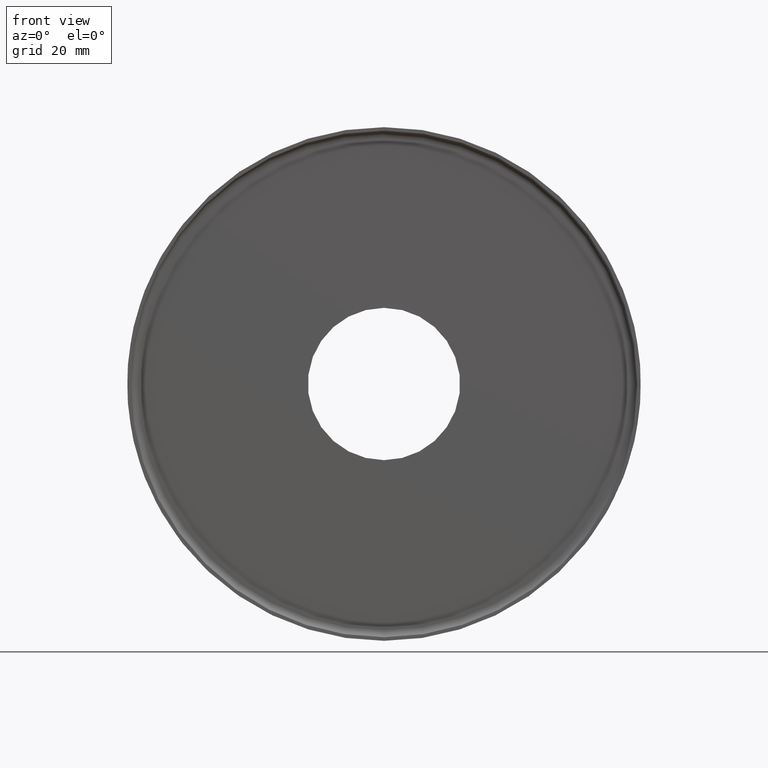
[diagram: clean part render]
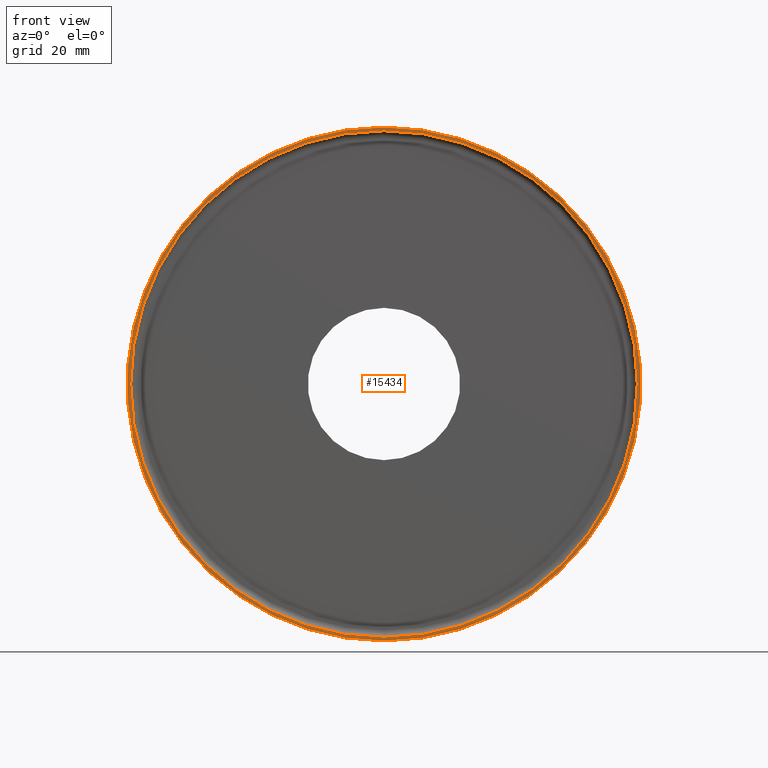
[diagram: same view with one face highlighted and labeled with its STEP entity id]
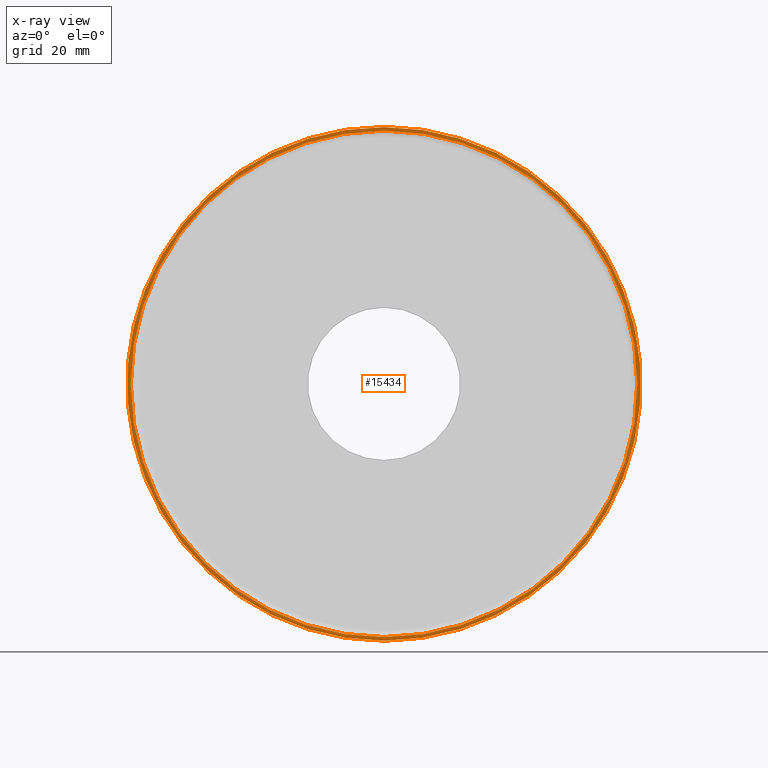
[diagram: x-ray of the same camera — body ghosted, the highlighted face saturated]
A machine part, front view. The second image highlights one B-rep face of the part: STEP entity #15434.
The next image is the same camera in x-ray: the body ghosted, the highlighted face saturated — about 0% of this face is hidden behind the body in this view.
In plain terms, the highlighted planar face has unit normal (0, -1, -0).
Its self-contained STEP definition (entity closure, byte-faithful):
#426 = CARTESIAN_POINT ( 'NONE',  ( 0.000000000000000000, 0.000000000000000000, 0.000000000000000000 ) ) ;
#807 = VERTEX_POINT ( 'NONE', #846 ) ;
#846 = CARTESIAN_POINT ( 'NONE',  ( 0.000000000000000000, -1.224646799147353207E-16, -71.50000000000000000 ) ) ;
#866 = CARTESIAN_POINT ( 'NONE',  ( 0.000000000000000000, 0.000000000000000000, 0.000000000000000000 ) ) ;
#949 = DIRECTION ( 'NONE',  ( -0.000000000000000000, -1.000000000000000000, -0.000000000000000000 ) ) ;
#1445 = CARTESIAN_POINT ( 'NONE',  ( 0.000000000000000000, 0.000000000000000000, -72.50000000000000000 ) ) ;
#1835 = DIRECTION ( 'NONE',  ( 0.000000000000000000, 0.000000000000000000, -1.000000000000000000 ) ) ;
#2159 = DIRECTION ( 'NONE',  ( 0.000000000000000000, 0.000000000000000000, -1.000000000000000000 ) ) ;
#2460 = EDGE_LOOP ( 'NONE', ( #16747, #6595 ) ) ;
#2900 = FACE_OUTER_BOUND ( 'NONE', #8059, .T. ) ;
#2934 = CIRCLE ( 'NONE', #3778, 72.50000000000000000 ) ;
#3778 = AXIS2_PLACEMENT_3D ( 'NONE', #426, #4272, #6810 ) ;
#3873 = VERTEX_POINT ( 'NONE', #1445 ) ;
#4272 = DIRECTION ( 'NONE',  ( -0.000000000000000000, -1.000000000000000000, -0.000000000000000000 ) ) ;
#6020 = DIRECTION ( 'NONE',  ( -0.000000000000000000, -1.000000000000000000, -0.000000000000000000 ) ) ;
#6595 = ORIENTED_EDGE ( 'NONE', *, *, #12360, .F. ) ;
#6810 = DIRECTION ( 'NONE',  ( 0.000000000000000000, 0.000000000000000000, -1.000000000000000000 ) ) ;
#7021 = DIRECTION ( 'NONE',  ( 0.000000000000000000, 0.000000000000000000, -1.000000000000000000 ) ) ;
#8059 = EDGE_LOOP ( 'NONE', ( #15906, #9593 ) ) ;
#8349 = DIRECTION ( 'NONE',  ( -0.000000000000000000, -1.000000000000000000, -0.000000000000000000 ) ) ;
#8384 = PLANE ( 'NONE',  #12459 ) ;
#8969 = AXIS2_PLACEMENT_3D ( 'NONE', #11192, #949, #11347 ) ;
#9540 = CIRCLE ( 'NONE', #8969, 71.50000000000000000 ) ;
#9593 = ORIENTED_EDGE ( 'NONE', *, *, #10071, .T. ) ;
#9636 = CARTESIAN_POINT ( 'NONE',  ( 0.000000000000000000, -1.224646799147353207E-16, 0.000000000000000000 ) ) ;
#9837 = CIRCLE ( 'NONE', #15686, 71.50000000000000000 ) ;
#10071 = EDGE_CURVE ( 'NONE', #13006, #3873, #11647, .T. ) ;
#10996 = EDGE_CURVE ( 'NONE', #807, #16796, #9837, .T. ) ;
#11192 = CARTESIAN_POINT ( 'NONE',  ( 0.000000000000000000, -1.224646799147353207E-16, 0.000000000000000000 ) ) ;
#11347 = DIRECTION ( 'NONE',  ( 0.000000000000000000, 0.000000000000000000, -1.000000000000000000 ) ) ;
#11647 = CIRCLE ( 'NONE', #13734, 72.50000000000000000 ) ;
#12360 = EDGE_CURVE ( 'NONE', #16796, #807, #9540, .T. ) ;
#12459 = AXIS2_PLACEMENT_3D ( 'NONE', #14817, #14752, #7021 ) ;
#12863 = EDGE_CURVE ( 'NONE', #3873, #13006, #2934, .T. ) ;
#12899 = CARTESIAN_POINT ( 'NONE',  ( 8.878689293818309285E-15, 0.000000000000000000, 72.50000000000000000 ) ) ;
#13006 = VERTEX_POINT ( 'NONE', #12899 ) ;
#13734 = AXIS2_PLACEMENT_3D ( 'NONE', #866, #6020, #2159 ) ;
#14752 = DIRECTION ( 'NONE',  ( 0.000000000000000000, -1.000000000000000000, -0.000000000000000000 ) ) ;
#14817 = CARTESIAN_POINT ( 'NONE',  ( 71.50000000000000000, -6.123233995736766036E-17, 0.000000000000000000 ) ) ;
#15434 = ADVANCED_FACE ( 'NONE', ( #2900, #16268 ), #8384, .T. ) ;
#15686 = AXIS2_PLACEMENT_3D ( 'NONE', #9636, #8349, #1835 ) ;
#15906 = ORIENTED_EDGE ( 'NONE', *, *, #12863, .T. ) ;
#16268 = FACE_BOUND ( 'NONE', #2460, .T. ) ;
#16434 = CARTESIAN_POINT ( 'NONE',  ( 8.756224613903574137E-15, -1.224646799147353207E-16, 71.50000000000000000 ) ) ;
#16747 = ORIENTED_EDGE ( 'NONE', *, *, #10996, .F. ) ;
#16796 = VERTEX_POINT ( 'NONE', #16434 ) ;